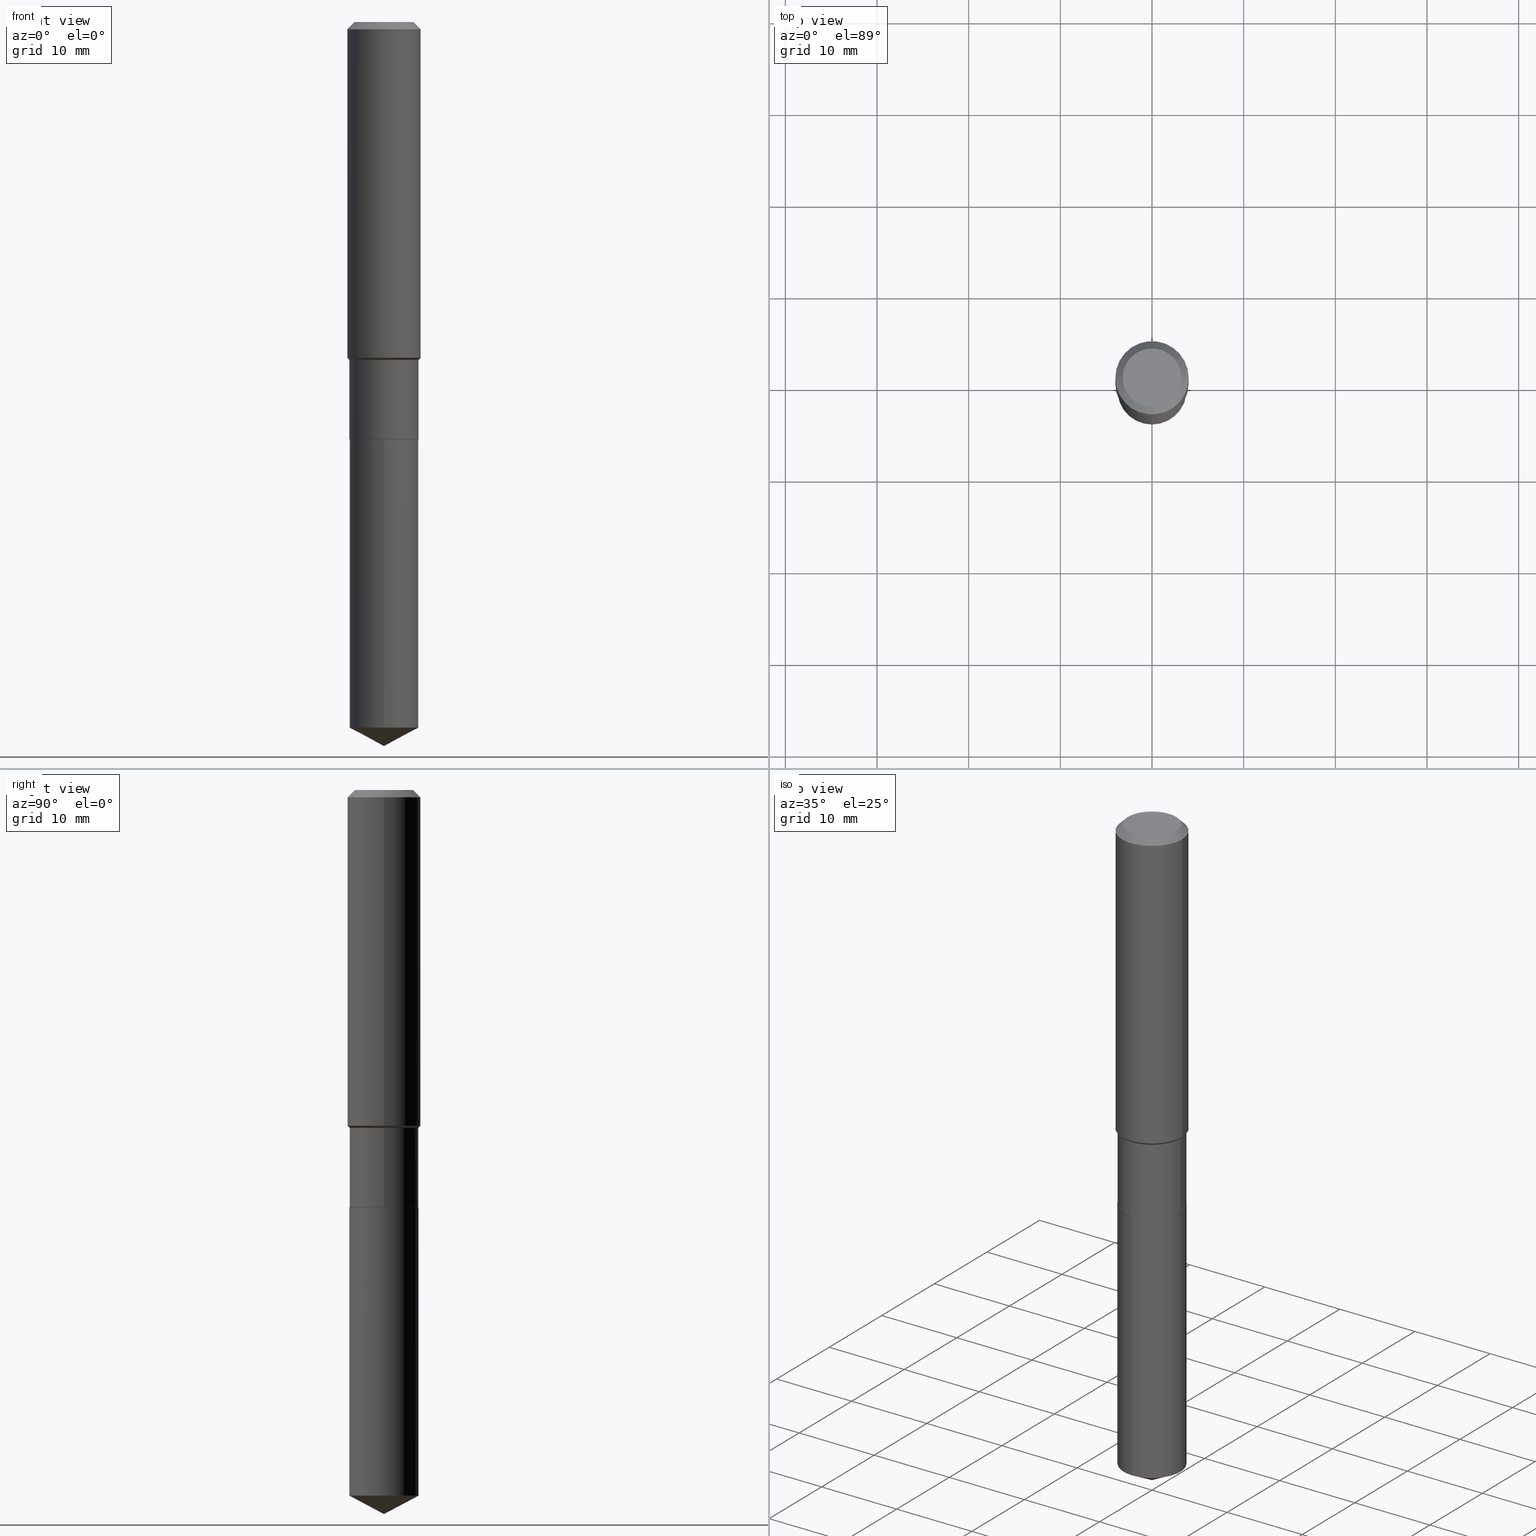
[diagram: canonical four-view strip — front | top / right | iso, engineering-drawing reading convention]
A machine part, canonical four-view strip (front | top / right | iso — engineering-drawing reading convention). The complete STEP part file that produces these views, byte-faithful:
ISO-10303-21;
HEADER;
FILE_DESCRIPTION (( 'STEP AP203' ),
    '1' );
FILE_NAME ('54714.STEP',
    '2024-04-24T15:29:49',
    ( '' ),
    ( '' ),
    'SwSTEP 2.0',
    'SolidWorks 2023',
    '' );
FILE_SCHEMA (( 'CONFIG_CONTROL_DESIGN' ));
ENDSEC;

DATA;
#1 = ORIENTED_EDGE ( 'NONE', *, *, #211, .T. ) ;
#2 = CARTESIAN_POINT ( 'NONE',  ( -0.1575000000000000844, 1.119104808822158392E-15, -7.747322767151481189E-30 ) ) ;
#3 = AXIS2_PLACEMENT_3D ( 'NONE', #361, #168, #131 ) ;
#4 = EDGE_LOOP ( 'NONE', ( #267, #236 ) ) ;
#5 = CARTESIAN_POINT ( 'NONE',  ( -0.1260000000000000009, 9.348441284752484904E-16, 3.860086710906114178E-18 ) ) ;
#6 = CALENDAR_DATE ( 2024, 24, 4 ) ;
#7 = EDGE_LOOP ( 'NONE', ( #156, #256, #313 ) ) ;
#8 = DIRECTION ( 'NONE',  ( -2.445468806185136597E-29, 3.491481338843145583E-15, 1.000000000000000000 ) ) ;
#9 = EDGE_CURVE ( 'NONE', #54, #458, #342, .T. ) ;
#10 =( LENGTH_UNIT ( ) NAMED_UNIT ( * ) SI_UNIT ( $, .METRE. ) );
#11 = DIRECTION ( 'NONE',  ( 1.000000000000000000, -6.982962677686264344E-15, 0.000000000000000000 ) ) ;
#12 = DIRECTION ( 'NONE',  ( -2.445468806185136877E-29, 3.491481338843145188E-15, 1.000000000000000000 ) ) ;
#13 = AXIS2_PLACEMENT_3D ( 'NONE', #221, #308, #468 ) ;
#14 = LINE ( 'NONE', #309, #60 ) ;
#15 = DIRECTION ( 'NONE',  ( -2.445583583356565207E-29, 3.491316971400948587E-15, 1.000000000000000000 ) ) ;
#16 = SECURITY_CLASSIFICATION ( '', '', #304 ) ;
#17 = ORIENTED_EDGE ( 'NONE', *, *, #20, .F. ) ;
#18 = DIRECTION ( 'NONE',  ( -2.445468806185136597E-29, 3.491481338843145583E-15, 1.000000000000000000 ) ) ;
#19 = DIRECTION ( 'NONE',  ( 1.000000000000000000, -6.982962677686265922E-15, 4.876176775795935793E-29 ) ) ;
#20 = EDGE_CURVE ( 'NONE', #428, #271, #14, .T. ) ;
#21 = CARTESIAN_POINT ( 'NONE',  ( -0.1484499999999999986, 1.054800691235868716E-15, -7.302159141483407353E-30 ) ) ;
#22 = DIRECTION ( 'NONE',  ( 1.000000000000000000, -6.982962677686265922E-15, 0.000000000000000000 ) ) ;
#23 = CC_DESIGN_PERSON_AND_ORGANIZATION_ASSIGNMENT ( #452, #205, ( #132 ) ) ;
#24 = CIRCLE ( 'NONE', #13, 0.1479499999999999982 ) ;
#25 = DIRECTION ( 'NONE',  ( -6.982962677686265133E-15, -1.000000000000000000, 3.680495781292372402E-15 ) ) ;
#26 = LOCAL_TIME ( 11, 29, 49.00000000000000000, #167 ) ;
#27 = CARTESIAN_POINT ( 'NONE',  ( 3.526977385720512669E-29, -5.035588960946525443E-15, -1.442249999999999588 ) ) ;
#28 = AXIS2_PLACEMENT_3D ( 'NONE', #379, #119, #265 ) ;
#29 = AXIS2_PLACEMENT_3D ( 'NONE', #407, #59, #130 ) ;
#30 = DIRECTION ( 'NONE',  ( 6.273719981627763710E-15, 0.8829475928589293199, 0.4694715627858859208 ) ) ;
#31 = ADVANCED_FACE ( 'NONE', ( #152 ), #92, .T. ) ;
#32 = ORIENTED_EDGE ( 'NONE', *, *, #86, .F. ) ;
#33 = DIRECTION ( 'NONE',  ( -2.445583583356565207E-29, 3.491316971400948587E-15, 1.000000000000000000 ) ) ;
#34 =( CONVERSION_BASED_UNIT ( 'INCH', #325 ) LENGTH_UNIT ( ) NAMED_UNIT ( #229 ) );
#35 = APPROVAL_DATE_TIME ( #65, #82 ) ;
#36 = EDGE_LOOP ( 'NONE', ( #17, #326, #112, #115 ) ) ;
#37 = CARTESIAN_POINT ( 'NONE',  ( -8.867725905918078075E-28, 1.265951336283329337E-13, 36.26007874015748200 ) ) ;
#38 = CONICAL_SURFACE ( 'NONE', #447, 0.1479499999999999982, 0.7853981633975678500 ) ;
#39 = DIRECTION ( 'NONE',  ( -2.445583583356565487E-29, 3.491316971400948587E-15, 1.000000000000000000 ) ) ;
#40 = APPROVAL_PERSON_ORGANIZATION ( #72, #82, #411 ) ;
#41 = APPROVAL_ROLE ( '' ) ;
#42 = FACE_OUTER_BOUND ( 'NONE', #69, .T. ) ;
#43 = EDGE_LOOP ( 'NONE', ( #377, #350, #228, #305 ) ) ;
#44 = DIRECTION ( 'NONE',  ( -2.445468806185136597E-29, 3.491481338843145583E-15, 1.000000000000000000 ) ) ;
#45 = ADVANCED_FACE ( 'NONE', ( #480 ), #203, .T. ) ;
#46 = APPROVAL_ROLE ( '' ) ;
#47 = ORIENTED_EDGE ( 'NONE', *, *, #307, .T. ) ;
#48 = CARTESIAN_POINT ( 'NONE',  ( -0.1575000000000000011, -1.453680502737883861E-15, -0.03150000000000019451 ) ) ;
#49 = CONICAL_SURFACE ( 'NONE', #216, 0.1479499999999999982, 0.7853981633975678500 ) ;
#50 = VERTEX_POINT ( 'NONE', #129 ) ;
#51 = CARTESIAN_POINT ( 'NONE',  ( 0.1575000000000000844, -1.099816621735587677E-15, 7.679978421878603638E-30 ) ) ;
#52 = ORIENTED_EDGE ( 'NONE', *, *, #70, .F. ) ;
#53 = CARTESIAN_POINT ( 'NONE',  ( -0.1484499999999999431, -4.012386175827188110E-15, -1.451299999999999812 ) ) ;
#54 = VERTEX_POINT ( 'NONE', #481 ) ;
#55 = CC_DESIGN_SECURITY_CLASSIFICATION ( #16, ( #132 ) ) ;
#56 = DIRECTION ( 'NONE',  ( -2.445468806185136597E-29, 3.491481338843145583E-15, 1.000000000000000000 ) ) ;
#57 = FACE_OUTER_BOUND ( 'NONE', #231, .T. ) ;
#58 = EDGE_CURVE ( 'NONE', #84, #50, #175, .T. ) ;
#59 = DIRECTION ( 'NONE',  ( -2.445468806185136597E-29, 3.491481338843145583E-15, 1.000000000000000000 ) ) ;
#60 = VECTOR ( 'NONE', #15, 39.37007874015748143 ) ;
#61 = DIRECTION ( 'NONE',  ( -2.445468806185136877E-29, 3.491481338843145188E-15, 1.000000000000000000 ) ) ;
#62 = CALENDAR_DATE ( 2024, 24, 4 ) ;
#63 = DIRECTION ( 'NONE',  ( -0.7071067811865451302, 2.468850131082231817E-15, -0.7071067811865499042 ) ) ;
#64 = EDGE_CURVE ( 'NONE', #50, #458, #199, .T. ) ;
#65 = DATE_AND_TIME ( #208, #312 ) ;
#66 = CARTESIAN_POINT ( 'NONE',  ( 7.605768552801713788E-29, -1.085799578105694907E-14, -3.109999999999999876 ) ) ;
#67 = CONICAL_SURFACE ( 'NONE', #415, 74.04434902938348273, 1.082104136236486269 ) ;
#68 = DATE_AND_TIME ( #62, #448 ) ;
#69 = EDGE_LOOP ( 'NONE', ( #437, #93, #417, #299 ) ) ;
#70 = EDGE_CURVE ( 'NONE', #50, #84, #272, .T. ) ;
#71 = CARTESIAN_POINT ( 'NONE',  ( 3.549108878416488564E-29, -5.067186867063056629E-15, -1.451299999999999812 ) ) ;
#72 = PERSON_AND_ORGANIZATION ( #222, #434 ) ;
#73 = ORIENTED_EDGE ( 'NONE', *, *, #220, .T. ) ;
#74 = DIRECTION ( 'NONE',  ( 2.445583583356565207E-29, -3.491316971400948587E-15, -1.000000000000000000 ) ) ;
#75 = ORIENTED_EDGE ( 'NONE', *, *, #490, .F. ) ;
#76 = FACE_OUTER_BOUND ( 'NONE', #254, .T. ) ;
#77 = DATE_TIME_ROLE ( 'classification_date' ) ;
#78 = VERTEX_POINT ( 'NONE', #477 ) ;
#79 = DIRECTION ( 'NONE',  ( -6.982962677686268288E-15, -1.000000000000000000, 3.541896320645563630E-15 ) ) ;
#80 = CONICAL_SURFACE ( 'NONE', #109, 0.1575000000000000011, 0.7853981633974449483 ) ;
#81 = MANIFOLD_SOLID_BREP ( 'Body-Move/Copy2[2]', #406 ) ;
#82 = APPROVAL ( #248, 'UNSPECIFIED' ) ;
#83 =( NAMED_UNIT ( * ) SI_UNIT ( $, .STERADIAN. ) SOLID_ANGLE_UNIT ( ) );
#84 = VERTEX_POINT ( 'NONE', #408 ) ;
#85 = DIRECTION ( 'NONE',  ( -2.445583583356565487E-29, 3.491316971400948587E-15, 1.000000000000000000 ) ) ;
#86 = EDGE_CURVE ( 'NONE', #345, #486, #439, .T. ) ;
#87 = PERSON_AND_ORGANIZATION_ROLE ( 'design_supplier' ) ;
#88 = ADVANCED_FACE ( 'NONE', ( #284 ), #38, .T. ) ;
#89 = ORIENTED_EDGE ( 'NONE', *, *, #258, .F. ) ;
#90 = AXIS2_PLACEMENT_3D ( 'NONE', #27, #320, #482 ) ;
#91 = EDGE_CURVE ( 'NONE', #297, #385, #317, .T. ) ;
#92 = CYLINDRICAL_SURFACE ( 'NONE', #483, 0.1484499999999999986 ) ;
#93 = ORIENTED_EDGE ( 'NONE', *, *, #58, .T. ) ;
#94 = ADVANCED_FACE ( 'NONE', ( #57 ), #279, .T. ) ;
#95 = ORIENTED_EDGE ( 'NONE', *, *, #20, .T. ) ;
#96 = LINE ( 'NONE', #240, #108 ) ;
#97 = ADVANCED_FACE ( 'NONE', ( #193 ), #104, .F. ) ;
#98 = DIRECTION ( 'NONE',  ( -6.982962677686265133E-15, -1.000000000000000000, 3.680495781292372402E-15 ) ) ;
#99 = CARTESIAN_POINT ( 'NONE',  ( 7.412523731404263380E-29, -1.058271288573057889E-14, -3.031067734869853592 ) ) ;
#100 = CARTESIAN_POINT ( 'NONE',  ( 3.549108878416488564E-29, -5.067186867063056629E-15, -1.451299999999999812 ) ) ;
#101 = CIRCLE ( 'NONE', #28, 0.1484499999999999986 ) ;
#102 = CONICAL_SURFACE ( 'NONE', #127, 0.1575000000000000011, 0.7853981633974449483 ) ;
#103 = DIRECTION ( 'NONE',  ( -2.445468806185136597E-29, 3.491481338843145583E-15, 1.000000000000000000 ) ) ;
#104 = PLANE ( 'NONE',  #252 ) ;
#105 = DIRECTION ( 'NONE',  ( -2.445583583356565487E-29, 3.491316971400948587E-15, 1.000000000000000000 ) ) ;
#106 = APPROVAL ( #184, 'UNSPECIFIED' ) ;
#107 = DIRECTION ( 'NONE',  ( 1.000000000000000000, -6.982962677686264344E-15, 0.000000000000000000 ) ) ;
#108 = VECTOR ( 'NONE', #395, 39.37007874015748143 ) ;
#109 = AXIS2_PLACEMENT_3D ( 'NONE', #213, #381, #463 ) ;
#110 = EDGE_LOOP ( 'NONE', ( #311, #147, #339, #249 ) ) ;
#111 = FACE_OUTER_BOUND ( 'NONE', #460, .T. ) ;
#112 = ORIENTED_EDGE ( 'NONE', *, *, #451, .T. ) ;
#113 = CARTESIAN_POINT ( 'NONE',  ( 4.383991928848093439E-29, -6.259178596144105809E-15, -1.792699999999999738 ) ) ;
#114 = DIRECTION ( 'NONE',  ( -2.445468806185136597E-29, 3.491481338843145583E-15, 1.000000000000000000 ) ) ;
#115 = ORIENTED_EDGE ( 'NONE', *, *, #197, .F. ) ;
#116 = VECTOR ( 'NONE', #285, 39.37007874015748143 ) ;
#117 = DIRECTION ( 'NONE',  ( 2.445468806185136597E-29, -3.491481338843145583E-15, -1.000000000000000000 ) ) ;
#118 = CIRCLE ( 'NONE', #456, 0.1575000000000000011 ) ;
#119 = DIRECTION ( 'NONE',  ( -2.445583583356565487E-29, 3.491316971400948587E-15, 1.000000000000000000 ) ) ;
#120 = LINE ( 'NONE', #182, #318 ) ;
#121 = ORIENTED_EDGE ( 'NONE', *, *, #425, .F. ) ;
#122 = ORIENTED_EDGE ( 'NONE', *, *, #478, .F. ) ;
#123 = EDGE_CURVE ( 'NONE', #84, #54, #409, .T. ) ;
#124 = AXIS2_PLACEMENT_3D ( 'NONE', #316, #442, #98 ) ;
#125 = CIRCLE ( 'NONE', #195, 0.1479499999999999982 ) ;
#126 = CARTESIAN_POINT ( 'NONE',  ( 4.383991928848093439E-29, -6.259178596144105809E-15, -1.792699999999999738 ) ) ;
#127 = AXIS2_PLACEMENT_3D ( 'NONE', #268, #117, #431 ) ;
#128 = DIRECTION ( 'NONE',  ( -2.445468806185136597E-29, 3.491481338843145583E-15, 1.000000000000000000 ) ) ;
#129 = CARTESIAN_POINT ( 'NONE',  ( 0.1484499999999999986, -7.294053664977210990E-15, -1.792199999999999793 ) ) ;
#130 = DIRECTION ( 'NONE',  ( 1.000000000000000000, -6.982962677686265922E-15, 0.000000000000000000 ) ) ;
#131 = DIRECTION ( 'NONE',  ( 1.000000000000000000, -6.982962677686268288E-15, 0.000000000000000000 ) ) ;
#132 = PRODUCT_DEFINITION_FORMATION_WITH_SPECIFIED_SOURCE ( 'ANY', '', #233, .NOT_KNOWN. ) ;
#133 = DIRECTION ( 'NONE',  ( 1.000000000000000000, -6.982962677686265133E-15, 0.000000000000000000 ) ) ;
#134 = CALENDAR_DATE ( 2024, 24, 4 ) ;
#135 = VERTEX_POINT ( 'NONE', #196 ) ;
#136 = LINE ( 'NONE', #66, #164 ) ;
#137 = ORIENTED_EDGE ( 'NONE', *, *, #295, .T. ) ;
#138 = LINE ( 'NONE', #257, #273 ) ;
#139 = ORIENTED_EDGE ( 'NONE', *, *, #451, .F. ) ;
#140 = DIRECTION ( 'NONE',  ( 1.000000000000000000, -6.982962677686267499E-15, 4.876176775795936353E-29 ) ) ;
#141 = FACE_OUTER_BOUND ( 'NONE', #223, .T. ) ;
#142 = ADVANCED_FACE ( 'NONE', ( #446 ), #161, .T. ) ;
#143 = DATE_AND_TIME ( #6, #484 ) ;
#144 = ORIENTED_EDGE ( 'NONE', *, *, #258, .T. ) ;
#145 = CARTESIAN_POINT ( 'NONE',  ( 7.412523731404263380E-29, -1.058271288573057889E-14, -3.031067734869853592 ) ) ;
#146 = COORDINATED_UNIVERSAL_TIME_OFFSET ( 5, 0, .BEHIND. ) ;
#147 = ORIENTED_EDGE ( 'NONE', *, *, #202, .T. ) ;
#148 = LINE ( 'NONE', #2, #387 ) ;
#149 = CONICAL_SURFACE ( 'NONE', #344, 74.04434902938348273, 1.082104136236486269 ) ;
#150 = ORIENTED_EDGE ( 'NONE', *, *, #490, .T. ) ;
#151 = DIRECTION ( 'NONE',  ( -2.445468806185136597E-29, 3.491481338843145583E-15, 1.000000000000000000 ) ) ;
#152 = FACE_OUTER_BOUND ( 'NONE', #36, .T. ) ;
#153 = CARTESIAN_POINT ( 'NONE',  ( -0.1479499999999999982, -5.205281391412926987E-15, -1.792699999999999738 ) ) ;
#154 = EDGE_LOOP ( 'NONE', ( #433, #336, #1, #422 ) ) ;
#155 = CC_DESIGN_APPROVAL ( #82, ( #132 ) ) ;
#156 = ORIENTED_EDGE ( 'NONE', *, *, #269, .F. ) ;
#157 = DIRECTION ( 'NONE',  ( 1.000000000000000000, -6.982962677686265922E-15, 4.876281427513067258E-29 ) ) ;
#158 = CC_DESIGN_PERSON_AND_ORGANIZATION_ASSIGNMENT ( #198, #287, ( #365 ) ) ;
#159 = LINE ( 'NONE', #314, #116 ) ;
#160 = DIRECTION ( 'NONE',  ( -1.000000000000000000, 6.982962677686265922E-15, -4.876176775795935793E-29 ) ) ;
#161 = CYLINDRICAL_SURFACE ( 'NONE', #124, 0.1484499999999999986 ) ;
#162 = DIRECTION ( 'NONE',  ( 1.000000000000000000, -6.982962677686264344E-15, 0.000000000000000000 ) ) ;
#163 = AXIS2_PLACEMENT_3D ( 'NONE', #242, #353, #315 ) ;
#164 = VECTOR ( 'NONE', #30, 39.37007874015748854 ) ;
#165 = CARTESIAN_POINT ( 'NONE',  ( 0.1484499999999999986, -1.036620809502526093E-15, 7.238684423669066410E-30 ) ) ;
#166 = EDGE_CURVE ( 'NONE', #458, #54, #310, .T. ) ;
#167 = COORDINATED_UNIVERSAL_TIME_OFFSET ( 5, 0, .BEHIND. ) ;
#168 = DIRECTION ( 'NONE',  ( -2.445468806185136597E-29, 3.491481338843145583E-15, 1.000000000000000000 ) ) ;
#169 = AXIS2_PLACEMENT_3D ( 'NONE', #241, #402, #107 ) ;
#170 = CC_DESIGN_PERSON_AND_ORGANIZATION_ASSIGNMENT ( #302, #266, ( #233 ) ) ;
#171 = CARTESIAN_POINT ( 'NONE',  ( 0.1260000000000000009, -1.027466422270894443E-15, 3.860086710919128072E-18 ) ) ;
#172 = ORIENTED_EDGE ( 'NONE', *, *, #166, .F. ) ;
#173 = FACE_OUTER_BOUND ( 'NONE', #7, .T. ) ;
#174 = EDGE_CURVE ( 'NONE', #206, #177, #24, .T. ) ;
#175 = CIRCLE ( 'NONE', #3, 0.1484499999999999986 ) ;
#176 = AXIS2_PLACEMENT_3D ( 'NONE', #330, #44, #207 ) ;
#177 = VERTEX_POINT ( 'NONE', #338 ) ;
#178 = DIRECTION ( 'NONE',  ( -6.982962677686268288E-15, -1.000000000000000000, 3.541896320645563630E-15 ) ) ;
#179 = COORDINATED_UNIVERSAL_TIME_OFFSET ( 5, 0, .BEHIND. ) ;
#180 = ORIENTED_EDGE ( 'NONE', *, *, #478, .T. ) ;
#181 = FACE_OUTER_BOUND ( 'NONE', #43, .T. ) ;
#182 = CARTESIAN_POINT ( 'NONE',  ( 0.1484499999999999431, -6.103807676565582525E-15, -1.451299999999999812 ) ) ;
#183 = EDGE_CURVE ( 'NONE', #297, #476, #391, .T. ) ;
#184 = APPROVAL_STATUS ( 'not_yet_approved' ) ;
#185 = ORIENTED_EDGE ( 'NONE', *, *, #357, .T. ) ;
#186 = CIRCLE ( 'NONE', #386, 0.1484499999999999986 ) ;
#187 = CONICAL_SURFACE ( 'NONE', #293, 0.1484499999999999431, 0.7853981633974445042 ) ;
#188 = ORIENTED_EDGE ( 'NONE', *, *, #251, .T. ) ;
#189 = DIRECTION ( 'NONE',  ( -0.7071067811865447972, 7.493145998870346272E-15, 0.7071067811865501263 ) ) ;
#190 = EDGE_LOOP ( 'NONE', ( #227, #185, #52, #290 ) ) ;
#191 = AXIS2_PLACEMENT_3D ( 'NONE', #474, #56, #11 ) ;
#192 = APPROVAL_PERSON_ORGANIZATION ( #217, #369, #41 ) ;
#193 = FACE_OUTER_BOUND ( 'NONE', #412, .T. ) ;
#194 = VECTOR ( 'NONE', #63, 39.37007874015748143 ) ;
#195 = AXIS2_PLACEMENT_3D ( 'NONE', #294, #219, #455 ) ;
#196 = CARTESIAN_POINT ( 'NONE',  ( -1.036620809502482311E-15, -0.1484500000000062436, -1.792699999999999072 ) ) ;
#197 = EDGE_CURVE ( 'NONE', #271, #135, #101, .T. ) ;
#198 = PERSON_AND_ORGANIZATION ( #222, #434 ) ;
#199 = LINE ( 'NONE', #165, #260 ) ;
#200 = DIRECTION ( 'NONE',  ( -6.982962677686265133E-15, -1.000000000000000000, 3.680495781292372402E-15 ) ) ;
#201 = CARTESIAN_POINT ( 'NONE',  ( 7.605353422168476698E-29, -1.085858510408420398E-14, -3.109999999999999876 ) ) ;
#202 = EDGE_CURVE ( 'NONE', #385, #297, #373, .T. ) ;
#203 = CONICAL_SURFACE ( 'NONE', #358, 0.1484499999999999431, 0.7853981633974445042 ) ;
#204 = AXIS2_PLACEMENT_3D ( 'NONE', #352, #18, #157 ) ;
#205 = PERSON_AND_ORGANIZATION_ROLE ( 'creator' ) ;
#206 = VERTEX_POINT ( 'NONE', #153 ) ;
#207 = DIRECTION ( 'NONE',  ( 1.000000000000000000, -6.982962677686265133E-15, 4.876176775795935793E-29 ) ) ;
#208 = CALENDAR_DATE ( 2024, 24, 4 ) ;
#209 = ORIENTED_EDGE ( 'NONE', *, *, #197, .T. ) ;
#210 = DIRECTION ( 'NONE',  ( 6.982962677686265922E-15, 1.000000000000000000, -3.491316971400948587E-15 ) ) ;
#211 = EDGE_CURVE ( 'NONE', #177, #50, #96, .T. ) ;
#212 = VERTEX_POINT ( 'NONE', #239 ) ;
#213 = CARTESIAN_POINT ( 'NONE',  ( 7.703226739483228723E-31, -1.099816621735597661E-16, -0.03150000000000019451 ) ) ;
#214 = APPLICATION_CONTEXT ( 'configuration controlled 3d designs of mechanical parts and assemblies' ) ;
#215 = AXIS2_PLACEMENT_3D ( 'NONE', #270, #151, #348 ) ;
#216 = AXIS2_PLACEMENT_3D ( 'NONE', #113, #8, #224 ) ;
#217 = PERSON_AND_ORGANIZATION ( #222, #434 ) ;
#218 = EDGE_LOOP ( 'NONE', ( #329, #367, #435, #453 ) ) ;
#219 = DIRECTION ( 'NONE',  ( -2.445468806185136597E-29, 3.491481338843145583E-15, 1.000000000000000000 ) ) ;
#220 = EDGE_CURVE ( 'NONE', #54, #385, #399, .T. ) ;
#221 = CARTESIAN_POINT ( 'NONE',  ( 4.383991928848093439E-29, -6.259178596144105809E-15, -1.792699999999999738 ) ) ;
#222 = PERSON ( 'UNSPECIFIED', 'UNSPECIFIED', 'UNSPECIFIED', ('UNSPECIFIED'), ('UNSPECIFIED'), ('UNSPECIFIED') ) ;
#223 = EDGE_LOOP ( 'NONE', ( #75, #188, #47, #32 ) ) ;
#224 = DIRECTION ( 'NONE',  ( 1.000000000000000000, -6.982962677686265133E-15, 0.000000000000000000 ) ) ;
#225 = DIRECTION ( 'NONE',  ( -2.445468806185136877E-29, 3.491481338843145188E-15, 1.000000000000000000 ) ) ;
#226 = PERSON_AND_ORGANIZATION ( #222, #434 ) ;
#227 = ORIENTED_EDGE ( 'NONE', *, *, #419, .T. ) ;
#228 = ORIENTED_EDGE ( 'NONE', *, *, #307, .F. ) ;
#229 = DIMENSIONAL_EXPONENTS ( 1.000000000000000000, 0.000000000000000000, 0.000000000000000000, 0.000000000000000000, 0.000000000000000000, 0.000000000000000000, 0.000000000000000000 ) ;
#230 = APPROVAL_PERSON_ORGANIZATION ( #226, #106, #46 ) ;
#231 = EDGE_LOOP ( 'NONE', ( #470, #392, #172, #488 ) ) ;
#232 = ORIENTED_EDGE ( 'NONE', *, *, #251, .F. ) ;
#233 = PRODUCT ( '54714', '54714', '', ( #384 ) ) ;
#234 = DIRECTION ( 'NONE',  ( -2.438088387897960049E-29, 3.491481338843145188E-15, 1.000000000000000000 ) ) ;
#235 = MANIFOLD_SOLID_BREP ( 'Body-Move/Copy2[1]', #292 ) ;
#236 = ORIENTED_EDGE ( 'NONE', *, *, #174, .F. ) ;
#237 = ADVANCED_FACE ( 'NONE', ( #351 ), #275, .F. ) ;
#238 = AXIS2_PLACEMENT_3D ( 'NONE', #280, #103, #243 ) ;
#239 = CARTESIAN_POINT ( 'NONE',  ( 7.605764944238918751E-29, -1.085799578105694907E-14, -3.109999999999999876 ) ) ;
#240 = CARTESIAN_POINT ( 'NONE',  ( 0.1479499999999999982, -7.292307924307788697E-15, -1.792699999999999738 ) ) ;
#241 = CARTESIAN_POINT ( 'NONE',  ( 3.549108878416488564E-29, -5.067186867063056629E-15, -1.451299999999999812 ) ) ;
#242 = CARTESIAN_POINT ( 'NONE',  ( 4.382769194445001759E-29, -6.257432855474684305E-15, -1.792199999999999793 ) ) ;
#243 = DIRECTION ( 'NONE',  ( 1.000000000000000000, -6.982962677686265922E-15, 4.876281427513067258E-29 ) ) ;
#244 = CC_DESIGN_APPROVAL ( #106, ( #365 ) ) ;
#245 = CIRCLE ( 'NONE', #204, 0.1260000000000000009 ) ;
#246 = DIRECTION ( 'NONE',  ( -2.445468806185136597E-29, 3.491481338843145583E-15, 1.000000000000000000 ) ) ;
#247 = DIRECTION ( 'NONE',  ( 2.438088387897960049E-29, -3.491481338843145188E-15, -1.000000000000000000 ) ) ;
#248 = APPROVAL_STATUS ( 'not_yet_approved' ) ;
#249 = ORIENTED_EDGE ( 'NONE', *, *, #295, .F. ) ;
#250 = CARTESIAN_POINT ( 'NONE',  ( 7.703226739483228723E-31, -1.099816621735597661E-16, -0.03150000000000019451 ) ) ;
#251 = EDGE_CURVE ( 'NONE', #462, #476, #159, .T. ) ;
#252 = AXIS2_PLACEMENT_3D ( 'NONE', #356, #247, #160 ) ;
#253 = CIRCLE ( 'NONE', #322, 0.1484499999999999986 ) ;
#254 = EDGE_LOOP ( 'NONE', ( #347, #276, #389 ) ) ;
#255 = LINE ( 'NONE', #467, #472 ) ;
#256 = ORIENTED_EDGE ( 'NONE', *, *, #283, .T. ) ;
#257 = CARTESIAN_POINT ( 'NONE',  ( -1.036620809502482311E-15, -0.1484500000000062436, -1.792699999999999072 ) ) ;
#258 = EDGE_CURVE ( 'NONE', #345, #462, #464, .T. ) ;
#259 = FACE_OUTER_BOUND ( 'NONE', #380, .T. ) ;
#260 = VECTOR ( 'NONE', #479, 39.37007874015748143 ) ;
#261 = CC_DESIGN_APPROVAL ( #369, ( #16 ) ) ;
#262 = ORIENTED_EDGE ( 'NONE', *, *, #91, .F. ) ;
#263 = CARTESIAN_POINT ( 'NONE',  ( 0.1484499999999999431, -6.103807676565582525E-15, -1.451299999999999812 ) ) ;
#264 = PRODUCT_RELATED_PRODUCT_CATEGORY ( 'detail', '', ( #233 ) ) ;
#265 = DIRECTION ( 'NONE',  ( -6.982962677686265133E-15, -1.000000000000000000, 3.680495781292372402E-15 ) ) ;
#266 = PERSON_AND_ORGANIZATION_ROLE ( 'design_owner' ) ;
#267 = ORIENTED_EDGE ( 'NONE', *, *, #419, .F. ) ;
#268 = CARTESIAN_POINT ( 'NONE',  ( 7.703226739483228723E-31, -1.099816621735597661E-16, -0.03150000000000019451 ) ) ;
#269 = EDGE_CURVE ( 'NONE', #212, #78, #485, .T. ) ;
#270 = CARTESIAN_POINT ( 'NONE',  ( 3.526977385720512669E-29, -5.035588960946525443E-15, -1.442249999999999588 ) ) ;
#271 = VERTEX_POINT ( 'NONE', #443 ) ;
#272 = CIRCLE ( 'NONE', #163, 0.1484499999999999986 ) ;
#273 = VECTOR ( 'NONE', #33, 39.37007874015748143 ) ;
#274 = DIRECTION ( 'NONE',  ( -2.445583583356565487E-29, 3.491316971400948587E-15, 1.000000000000000000 ) ) ;
#275 = PLANE ( 'NONE',  #278 ) ;
#276 = ORIENTED_EDGE ( 'NONE', *, *, #269, .T. ) ;
#277 = EDGE_CURVE ( 'NONE', #428, #78, #186, .T. ) ;
#278 = AXIS2_PLACEMENT_3D ( 'NONE', #438, #234, #19 ) ;
#279 = CYLINDRICAL_SURFACE ( 'NONE', #331, 0.1484499999999999986 ) ;
#280 = CARTESIAN_POINT ( 'NONE',  ( -9.439721640706201686E-47, 1.347742071746726764E-32, 3.860086710912459732E-18 ) ) ;
#281 = CARTESIAN_POINT ( 'NONE',  ( -0.1575000000000000011, 9.898349595620272334E-16, -0.03150000000000019451 ) ) ;
#282 = CYLINDRICAL_SURFACE ( 'NONE', #303, 0.1575000000000000844 ) ;
#283 = EDGE_CURVE ( 'NONE', #212, #428, #136, .T. ) ;
#284 = FACE_OUTER_BOUND ( 'NONE', #154, .T. ) ;
#285 = DIRECTION ( 'NONE',  ( 0.7071067811865451302, -7.319954787623248157E-15, -0.7071067811865499042 ) ) ;
#286 = DIRECTION ( 'NONE',  ( -2.445468806185136597E-29, 3.491481338843145583E-15, 1.000000000000000000 ) ) ;
#287 = PERSON_AND_ORGANIZATION_ROLE ( 'creator' ) ;
#288 = COORDINATED_UNIVERSAL_TIME_OFFSET ( 5, 0, .BEHIND. ) ;
#289 = ORIENTED_EDGE ( 'NONE', *, *, #349, .T. ) ;
#290 = ORIENTED_EDGE ( 'NONE', *, *, #211, .F. ) ;
#291 = DIRECTION ( 'NONE',  ( -0.7071067811866320607, 7.493145998870660238E-15, 0.7071067811864629737 ) ) ;
#292 = CLOSED_SHELL ( 'NONE', ( #142, #401, #383, #31, #436 ) ) ;
#293 = AXIS2_PLACEMENT_3D ( 'NONE', #71, #360, #162 ) ;
#294 = CARTESIAN_POINT ( 'NONE',  ( 4.383991928848093439E-29, -6.259178596144105809E-15, -1.792699999999999738 ) ) ;
#295 = EDGE_CURVE ( 'NONE', #486, #476, #118, .T. ) ;
#296 = CARTESIAN_POINT ( 'NONE',  ( 0.000000000000000000, 0.000000000000000000, 0.000000000000000000 ) ) ;
#297 = VERTEX_POINT ( 'NONE', #487 ) ;
#298 = DIRECTION ( 'NONE',  ( -6.982962677686265133E-15, -1.000000000000000000, 3.680495781292372402E-15 ) ) ;
#299 = ORIENTED_EDGE ( 'NONE', *, *, #9, .F. ) ;
#300 = DIRECTION ( 'NONE',  ( -2.445583583356565487E-29, 3.491316971400948587E-15, 1.000000000000000000 ) ) ;
#301 = VECTOR ( 'NONE', #362, 39.37007874015748854 ) ;
#302 = PERSON_AND_ORGANIZATION ( #222, #434 ) ;
#303 = AXIS2_PLACEMENT_3D ( 'NONE', #445, #114, #327 ) ;
#304 = SECURITY_CLASSIFICATION_LEVEL ( 'unclassified' ) ;
#305 = ORIENTED_EDGE ( 'NONE', *, *, #183, .F. ) ;
#306 = CYLINDRICAL_SURFACE ( 'NONE', #176, 0.1484499999999999986 ) ;
#307 = EDGE_CURVE ( 'NONE', #476, #486, #364, .T. ) ;
#308 = DIRECTION ( 'NONE',  ( -2.445468806185136597E-29, 3.491481338843145583E-15, 1.000000000000000000 ) ) ;
#309 = CARTESIAN_POINT ( 'NONE',  ( 1.054800691235912301E-15, 0.1484499999999937259, -1.792700000000000182 ) ) ;
#310 = CIRCLE ( 'NONE', #169, 0.1484499999999999431 ) ;
#311 = ORIENTED_EDGE ( 'NONE', *, *, #405, .F. ) ;
#312 = LOCAL_TIME ( 11, 29, 49.00000000000000000, #288 ) ;
#313 = ORIENTED_EDGE ( 'NONE', *, *, #349, .F. ) ;
#314 = CARTESIAN_POINT ( 'NONE',  ( 0.1575000000000000011, -1.190510096822576026E-15, -0.03150000000000019451 ) ) ;
#315 = DIRECTION ( 'NONE',  ( 1.000000000000000000, -6.982962677686268288E-15, 0.000000000000000000 ) ) ;
#316 = CARTESIAN_POINT ( 'NONE',  ( 4.383991928848093439E-29, -6.259178596144105809E-15, -1.792699999999999738 ) ) ;
#317 = CIRCLE ( 'NONE', #90, 0.1575000000000001676 ) ;
#318 = VECTOR ( 'NONE', #459, 39.37007874015748854 ) ;
#319 = UNCERTAINTY_MEASURE_WITH_UNIT (LENGTH_MEASURE( 1.000000000000000082E-05 ), #34, 'distance_accuracy_value', 'NONE');
#320 = DIRECTION ( 'NONE',  ( -2.445468806185136597E-29, 3.491481338843145583E-15, 1.000000000000000000 ) ) ;
#321 = VECTOR ( 'NONE', #189, 39.37007874015748854 ) ;
#322 = AXIS2_PLACEMENT_3D ( 'NONE', #145, #423, #372 ) ;
#323 = APPROVAL_DATE_TIME ( #68, #106 ) ;
#324 = ADVANCED_FACE ( 'NONE', ( #413 ), #187, .T. ) ;
#325 = LENGTH_MEASURE_WITH_UNIT ( LENGTH_MEASURE( 0.02539999999999999897 ), #10 );
#326 = ORIENTED_EDGE ( 'NONE', *, *, #277, .T. ) ;
#327 = DIRECTION ( 'NONE',  ( 1.000000000000000000, -6.982962677686267499E-15, 4.876176775795936353E-29 ) ) ;
#328 = ADVANCED_BREP_SHAPE_REPRESENTATION ( '54714', ( #235, #81, #397 ), #465 ) ;
#329 = ORIENTED_EDGE ( 'NONE', *, *, #220, .F. ) ;
#330 = CARTESIAN_POINT ( 'NONE',  ( 0.000000000000000000, 0.000000000000000000, 0.000000000000000000 ) ) ;
#331 = AXIS2_PLACEMENT_3D ( 'NONE', #359, #286, #449 ) ;
#332 = CIRCLE ( 'NONE', #473, 0.1484499999999999986 ) ;
#333 = APPLICATION_PROTOCOL_DEFINITION ( 'international standard', 'config_control_design', 1994, #214 ) ;
#334 = ORIENTED_EDGE ( 'NONE', *, *, #86, .T. ) ;
#335 = CARTESIAN_POINT ( 'NONE',  ( -8.867725905918078075E-28, 1.265951336283329337E-13, 36.26007874015748200 ) ) ;
#336 = ORIENTED_EDGE ( 'NONE', *, *, #174, .T. ) ;
#337 = CARTESIAN_POINT ( 'NONE',  ( 0.000000000000000000, 0.000000000000000000, 0.000000000000000000 ) ) ;
#338 = CARTESIAN_POINT ( 'NONE',  ( 0.1479499999999999982, -7.292307924307788697E-15, -1.792699999999999738 ) ) ;
#339 = ORIENTED_EDGE ( 'NONE', *, *, #183, .T. ) ;
#340 = DIRECTION ( 'NONE',  ( -2.445468806185136597E-29, 3.491481338843145583E-15, 1.000000000000000000 ) ) ;
#341 = ADVANCED_FACE ( 'NONE', ( #403 ), #282, .T. ) ;
#342 = CIRCLE ( 'NONE', #191, 0.1484499999999999431 ) ;
#343 = DIRECTION ( 'NONE',  ( 1.000000000000000000, 0.000000000000000000, 0.000000000000000000 ) ) ;
#344 = AXIS2_PLACEMENT_3D ( 'NONE', #335, #85, #79 ) ;
#345 = VERTEX_POINT ( 'NONE', #5 ) ;
#346 = COORDINATED_UNIVERSAL_TIME_OFFSET ( 5, 0, .BEHIND. ) ;
#347 = ORIENTED_EDGE ( 'NONE', *, *, #283, .F. ) ;
#348 = DIRECTION ( 'NONE',  ( 1.000000000000000000, -6.982962677686267499E-15, 0.000000000000000000 ) ) ;
#349 = EDGE_CURVE ( 'NONE', #78, #428, #253, .T. ) ;
#350 = ORIENTED_EDGE ( 'NONE', *, *, #405, .T. ) ;
#351 = FACE_OUTER_BOUND ( 'NONE', #4, .T. ) ;
#352 = CARTESIAN_POINT ( 'NONE',  ( -9.439721640706201686E-47, 1.347742071746726764E-32, 3.860086710912459732E-18 ) ) ;
#353 = DIRECTION ( 'NONE',  ( -2.445468806185136597E-29, 3.491481338843145583E-15, 1.000000000000000000 ) ) ;
#354 = CC_DESIGN_DATE_AND_TIME_ASSIGNMENT ( #421, #77, ( #16 ) ) ;
#355 = SHAPE_DEFINITION_REPRESENTATION ( #398, #328 ) ;
#356 = CARTESIAN_POINT ( 'NONE',  ( -4.719860820353100843E-47, 6.738710358733633822E-33, 1.930043355456229866E-18 ) ) ;
#357 = EDGE_CURVE ( 'NONE', #206, #84, #255, .T. ) ;
#358 = AXIS2_PLACEMENT_3D ( 'NONE', #100, #246, #404 ) ;
#359 = CARTESIAN_POINT ( 'NONE',  ( 0.000000000000000000, 0.000000000000000000, 0.000000000000000000 ) ) ;
#360 = DIRECTION ( 'NONE',  ( -2.445468806185136597E-29, 3.491481338843145583E-15, 1.000000000000000000 ) ) ;
#361 = CARTESIAN_POINT ( 'NONE',  ( 4.382769194445001759E-29, -6.257432855474684305E-15, -1.792199999999999793 ) ) ;
#362 = DIRECTION ( 'NONE',  ( -6.165590087286832874E-15, -0.8829475928589261002, 0.4694715627858920826 ) ) ;
#363 = VECTOR ( 'NONE', #225, 39.37007874015748143 ) ;
#364 = CIRCLE ( 'NONE', #29, 0.1575000000000000011 ) ;
#365 = PRODUCT_DEFINITION ( 'UNKNOWN', '', #132, #370 ) ;
#366 = PERSON_AND_ORGANIZATION ( #222, #434 ) ;
#367 = ORIENTED_EDGE ( 'NONE', *, *, #9, .T. ) ;
#368 = PLANE ( 'NONE',  #374 ) ;
#369 = APPROVAL ( #376, 'UNSPECIFIED' ) ;
#370 = DESIGN_CONTEXT ( 'detailed design', #471, 'design' ) ;
#371 = CARTESIAN_POINT ( 'NONE',  ( -0.1575000000000001676, -3.916484152124366261E-15, -1.442249999999999588 ) ) ;
#372 = DIRECTION ( 'NONE',  ( -6.982962677686265133E-15, -1.000000000000000000, 3.680495781292372402E-15 ) ) ;
#373 = CIRCLE ( 'NONE', #215, 0.1575000000000001676 ) ;
#374 = AXIS2_PLACEMENT_3D ( 'NONE', #378, #74, #210 ) ;
#375 = ADVANCED_FACE ( 'NONE', ( #181 ), #461, .T. ) ;
#376 = APPROVAL_STATUS ( 'not_yet_approved' ) ;
#377 = ORIENTED_EDGE ( 'NONE', *, *, #91, .T. ) ;
#378 = CARTESIAN_POINT ( 'NONE',  ( 4.383991928848093439E-29, -6.259178596144105809E-15, -1.792699999999999738 ) ) ;
#379 = CARTESIAN_POINT ( 'NONE',  ( 4.383991928848093439E-29, -6.259178596144105809E-15, -1.792699999999999738 ) ) ;
#380 = EDGE_LOOP ( 'NONE', ( #232, #89, #334, #137 ) ) ;
#381 = DIRECTION ( 'NONE',  ( 2.445468806185136597E-29, -3.491481338843145583E-15, -1.000000000000000000 ) ) ;
#382 = ADVANCED_FACE ( 'NONE', ( #259 ), #102, .T. ) ;
#383 = ADVANCED_FACE ( 'NONE', ( #76 ), #67, .T. ) ;
#384 = MECHANICAL_CONTEXT ( 'NONE', #214, 'mechanical' ) ;
#385 = VERTEX_POINT ( 'NONE', #371 ) ;
#386 = AXIS2_PLACEMENT_3D ( 'NONE', #99, #105, #200 ) ;
#387 = VECTOR ( 'NONE', #12, 39.37007874015748143 ) ;
#388 = PERSON_AND_ORGANIZATION ( #222, #434 ) ;
#389 = ORIENTED_EDGE ( 'NONE', *, *, #277, .F. ) ;
#390 = CC_DESIGN_DATE_AND_TIME_ASSIGNMENT ( #450, #416, ( #365 ) ) ;
#391 = LINE ( 'NONE', #51, #363 ) ;
#392 = ORIENTED_EDGE ( 'NONE', *, *, #123, .T. ) ;
#393 = EDGE_LOOP ( 'NONE', ( #396, #73, #262, #121 ) ) ;
#394 = ADVANCED_FACE ( 'NONE', ( #42 ), #306, .T. ) ;
#395 = DIRECTION ( 'NONE',  ( 0.7071067811866320607, -2.468850131083142557E-15, 0.7071067811864629737 ) ) ;
#396 = ORIENTED_EDGE ( 'NONE', *, *, #166, .T. ) ;
#397 = AXIS2_PLACEMENT_3D ( 'NONE', #296, #466, #343 ) ;
#398 = PRODUCT_DEFINITION_SHAPE ( 'NONE', 'NONE',  #365 ) ;
#399 = LINE ( 'NONE', #53, #321 ) ;
#400 = DIRECTION ( 'NONE',  ( -2.445468806185136597E-29, 3.491481338843145583E-15, 1.000000000000000000 ) ) ;
#401 = ADVANCED_FACE ( 'NONE', ( #173 ), #149, .T. ) ;
#402 = DIRECTION ( 'NONE',  ( -2.445468806185136597E-29, 3.491481338843145583E-15, 1.000000000000000000 ) ) ;
#403 = FACE_OUTER_BOUND ( 'NONE', #110, .T. ) ;
#404 = DIRECTION ( 'NONE',  ( 1.000000000000000000, -6.982962677686264344E-15, 0.000000000000000000 ) ) ;
#405 = EDGE_CURVE ( 'NONE', #385, #486, #148, .T. ) ;
#406 = CLOSED_SHELL ( 'NONE', ( #410, #441, #375, #45, #94, #394, #324, #341, #382, #97, #237, #88 ) ) ;
#407 = CARTESIAN_POINT ( 'NONE',  ( 7.703226739483228723E-31, -1.099816621735597661E-16, -0.03150000000000019451 ) ) ;
#408 = CARTESIAN_POINT ( 'NONE',  ( -0.1484500000000000264, -4.607509170033001160E-15, -1.792199999999999793 ) ) ;
#409 = LINE ( 'NONE', #21, #414 ) ;
#410 = ADVANCED_FACE ( 'NONE', ( #489 ), #49, .T. ) ;
#411 = APPROVAL_ROLE ( '' ) ;
#412 = EDGE_LOOP ( 'NONE', ( #144, #150 ) ) ;
#413 = FACE_OUTER_BOUND ( 'NONE', #218, .T. ) ;
#414 = VECTOR ( 'NONE', #61, 39.37007874015748143 ) ;
#415 = AXIS2_PLACEMENT_3D ( 'NONE', #37, #300, #178 ) ;
#416 = DATE_TIME_ROLE ( 'creation_date' ) ;
#417 = ORIENTED_EDGE ( 'NONE', *, *, #64, .T. ) ;
#418 = CARTESIAN_POINT ( 'NONE',  ( 1.054800691235942475E-15, 0.1484499999999893960, -3.031067734869854480 ) ) ;
#419 = EDGE_CURVE ( 'NONE', #177, #206, #125, .T. ) ;
#420 = CARTESIAN_POINT ( 'NONE',  ( 4.383991928848093439E-29, -6.259178596144105809E-15, -1.792699999999999738 ) ) ;
#421 = DATE_AND_TIME ( #457, #424 ) ;
#422 = ORIENTED_EDGE ( 'NONE', *, *, #58, .F. ) ;
#423 = DIRECTION ( 'NONE',  ( -2.445583583356565487E-29, 3.491316971400948587E-15, 1.000000000000000000 ) ) ;
#424 = LOCAL_TIME ( 11, 29, 49.00000000000000000, #346 ) ;
#425 = EDGE_CURVE ( 'NONE', #458, #297, #120, .T. ) ;
#426 =( NAMED_UNIT ( * ) PLANE_ANGLE_UNIT ( ) SI_UNIT ( $, .RADIAN. ) );
#427 = APPROVAL_DATE_TIME ( #143, #369 ) ;
#428 = VERTEX_POINT ( 'NONE', #418 ) ;
#429 = CARTESIAN_POINT ( 'NONE',  ( 0.1575000000000000011, -1.209798283909146741E-15, -0.03150000000000019451 ) ) ;
#430 = APPLICATION_PROTOCOL_DEFINITION ( 'international standard', 'config_control_design', 1994, #471 ) ;
#431 = DIRECTION ( 'NONE',  ( -1.000000000000000000, 6.982962677686265922E-15, 0.000000000000000000 ) ) ;
#432 = CC_DESIGN_PERSON_AND_ORGANIZATION_ASSIGNMENT ( #366, #87, ( #132 ) ) ;
#433 = ORIENTED_EDGE ( 'NONE', *, *, #357, .F. ) ;
#434 = ORGANIZATION ( 'UNSPECIFIED', 'UNSPECIFIED', '' ) ;
#435 = ORIENTED_EDGE ( 'NONE', *, *, #425, .T. ) ;
#436 = ADVANCED_FACE ( 'NONE', ( #111 ), #368, .F. ) ;
#437 = ORIENTED_EDGE ( 'NONE', *, *, #123, .F. ) ;
#438 = CARTESIAN_POINT ( 'NONE',  ( 4.383991928848093439E-29, -6.259178596144105809E-15, -1.792699999999999738 ) ) ;
#439 = LINE ( 'NONE', #281, #194 ) ;
#440 = AXIS2_PLACEMENT_3D ( 'NONE', #337, #340, #140 ) ;
#441 = ADVANCED_FACE ( 'NONE', ( #141 ), #80, .T. ) ;
#442 = DIRECTION ( 'NONE',  ( -2.445583583356565487E-29, 3.491316971400948587E-15, 1.000000000000000000 ) ) ;
#443 = CARTESIAN_POINT ( 'NONE',  ( 1.054800691235942869E-15, 0.1484499999999937259, -1.792700000000000182 ) ) ;
#444 = CARTESIAN_POINT ( 'NONE',  ( 4.383991928848093439E-29, -6.259178596144105809E-15, -1.792699999999999738 ) ) ;
#445 = CARTESIAN_POINT ( 'NONE',  ( 0.000000000000000000, 0.000000000000000000, 0.000000000000000000 ) ) ;
#446 = FACE_OUTER_BOUND ( 'NONE', #454, .T. ) ;
#447 = AXIS2_PLACEMENT_3D ( 'NONE', #444, #400, #133 ) ;
#448 = LOCAL_TIME ( 11, 29, 49.00000000000000000, #146 ) ;
#449 = DIRECTION ( 'NONE',  ( 1.000000000000000000, -6.982962677686265133E-15, 4.876176775795935793E-29 ) ) ;
#450 = DATE_AND_TIME ( #134, #26 ) ;
#451 = EDGE_CURVE ( 'NONE', #78, #135, #138, .T. ) ;
#452 = PERSON_AND_ORGANIZATION ( #222, #434 ) ;
#453 = ORIENTED_EDGE ( 'NONE', *, *, #202, .F. ) ;
#454 = EDGE_LOOP ( 'NONE', ( #289, #95, #122, #139 ) ) ;
#455 = DIRECTION ( 'NONE',  ( 1.000000000000000000, -6.982962677686265133E-15, 0.000000000000000000 ) ) ;
#456 = AXIS2_PLACEMENT_3D ( 'NONE', #250, #128, #22 ) ;
#457 = CALENDAR_DATE ( 2024, 24, 4 ) ;
#458 = VERTEX_POINT ( 'NONE', #263 ) ;
#459 = DIRECTION ( 'NONE',  ( 0.7071067811865447972, -2.468850131082228662E-15, 0.7071067811865501263 ) ) ;
#460 = EDGE_LOOP ( 'NONE', ( #180, #209 ) ) ;
#461 = CYLINDRICAL_SURFACE ( 'NONE', #440, 0.1575000000000000844 ) ;
#462 = VERTEX_POINT ( 'NONE', #171 ) ;
#463 = DIRECTION ( 'NONE',  ( -1.000000000000000000, 6.982962677686265922E-15, 0.000000000000000000 ) ) ;
#464 = CIRCLE ( 'NONE', #238, 0.1260000000000000009 ) ;
#465 =( GEOMETRIC_REPRESENTATION_CONTEXT ( 3 ) GLOBAL_UNCERTAINTY_ASSIGNED_CONTEXT ( ( #319 ) ) GLOBAL_UNIT_ASSIGNED_CONTEXT ( ( #34, #426, #83 ) ) REPRESENTATION_CONTEXT ( 'NONE', 'WORKASPACE' ) );
#466 = DIRECTION ( 'NONE',  ( 0.000000000000000000, 0.000000000000000000, 1.000000000000000000 ) ) ;
#467 = CARTESIAN_POINT ( 'NONE',  ( -0.1479499999999999982, -5.207930618587038189E-15, -1.792699999999999738 ) ) ;
#468 = DIRECTION ( 'NONE',  ( 1.000000000000000000, -6.982962677686265133E-15, 0.000000000000000000 ) ) ;
#469 = PERSON_AND_ORGANIZATION_ROLE ( 'classification_officer' ) ;
#470 = ORIENTED_EDGE ( 'NONE', *, *, #70, .T. ) ;
#471 = APPLICATION_CONTEXT ( 'configuration controlled 3d designs of mechanical parts and assemblies' ) ;
#472 = VECTOR ( 'NONE', #291, 39.37007874015748143 ) ;
#473 = AXIS2_PLACEMENT_3D ( 'NONE', #420, #39, #298 ) ;
#474 = CARTESIAN_POINT ( 'NONE',  ( 3.549108878416488564E-29, -5.067186867063056629E-15, -1.451299999999999812 ) ) ;
#475 = CC_DESIGN_PERSON_AND_ORGANIZATION_ASSIGNMENT ( #388, #469, ( #16 ) ) ;
#476 = VERTEX_POINT ( 'NONE', #429 ) ;
#477 = CARTESIAN_POINT ( 'NONE',  ( -1.036620809502451743E-15, -0.1484500000000105457, -3.031067734869853147 ) ) ;
#478 = EDGE_CURVE ( 'NONE', #135, #271, #332, .T. ) ;
#479 = DIRECTION ( 'NONE',  ( -2.445468806185136877E-29, 3.491481338843145188E-15, 1.000000000000000000 ) ) ;
#480 = FACE_OUTER_BOUND ( 'NONE', #393, .T. ) ;
#481 = CARTESIAN_POINT ( 'NONE',  ( -0.1484499999999999431, -4.607509170033001948E-15, -1.451299999999999812 ) ) ;
#482 = DIRECTION ( 'NONE',  ( 1.000000000000000000, -6.982962677686267499E-15, 0.000000000000000000 ) ) ;
#483 = AXIS2_PLACEMENT_3D ( 'NONE', #126, #274, #25 ) ;
#484 = LOCAL_TIME ( 11, 29, 49.00000000000000000, #179 ) ;
#485 = LINE ( 'NONE', #201, #301 ) ;
#486 = VERTEX_POINT ( 'NONE', #48 ) ;
#487 = CARTESIAN_POINT ( 'NONE',  ( 0.1575000000000001676, -6.135405582682112923E-15, -1.442249999999999588 ) ) ;
#488 = ORIENTED_EDGE ( 'NONE', *, *, #64, .F. ) ;
#489 = FACE_OUTER_BOUND ( 'NONE', #190, .T. ) ;
#490 = EDGE_CURVE ( 'NONE', #462, #345, #245, .T. ) ;
ENDSEC;
END-ISO-10303-21;
